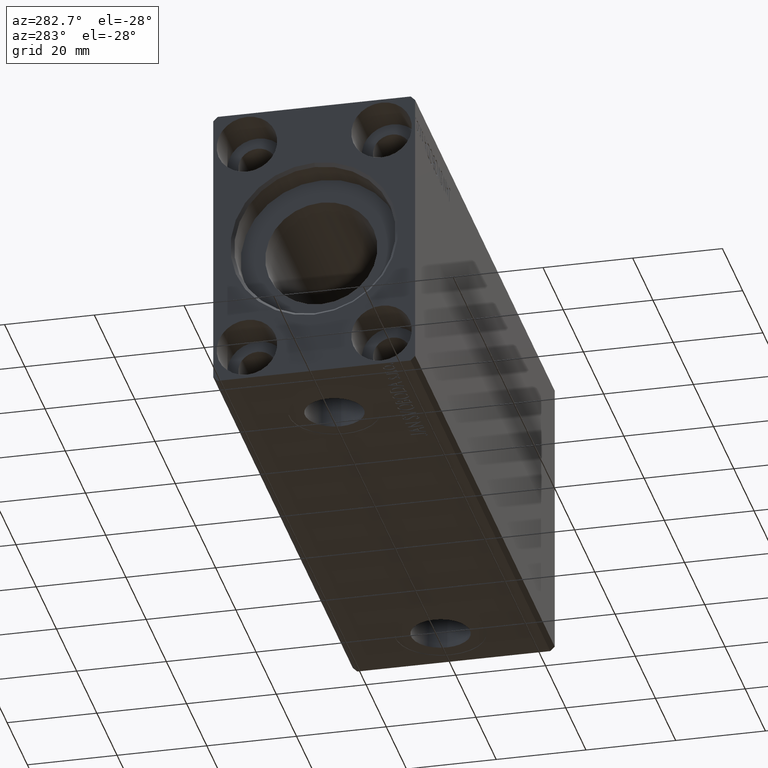
[diagram: clean part render]
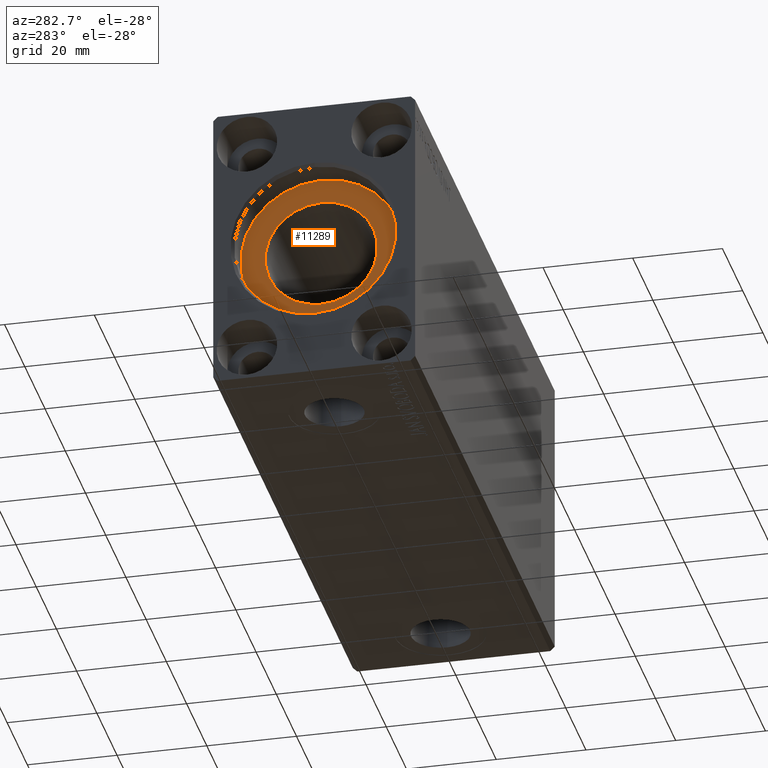
[diagram: same view with one face highlighted and labeled with its STEP entity id]
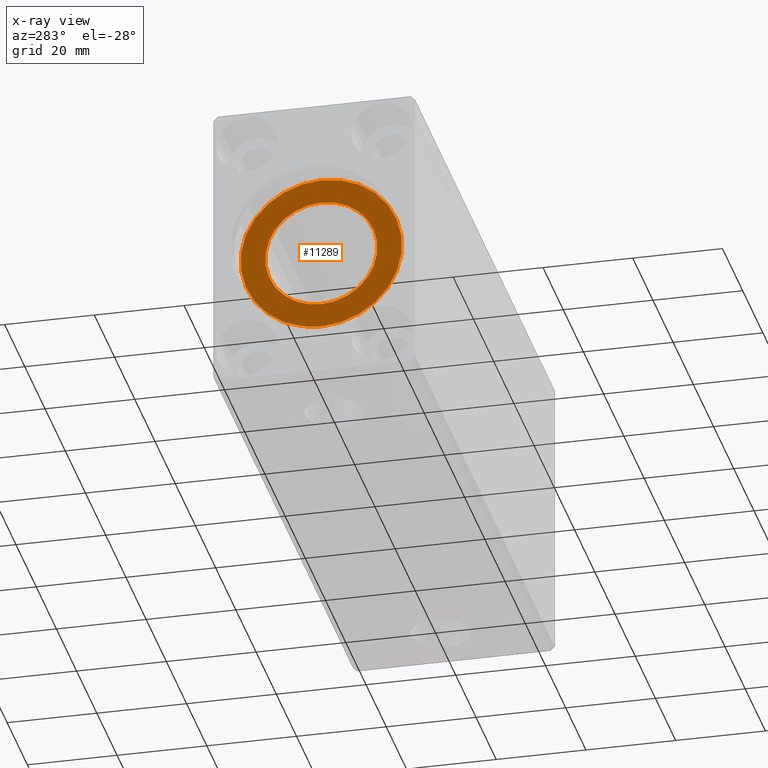
[diagram: x-ray of the same camera — body ghosted, the highlighted face saturated]
A machine part, auxiliary view. The second image highlights one B-rep face of the part: STEP entity #11289.
The next image is the same camera in x-ray: the body ghosted, the highlighted face saturated — about 0% of this face is hidden behind the body in this view.
In plain terms, the highlighted planar face has unit normal (-1, 0, 0).
Its self-contained STEP definition (entity closure, byte-faithful):
#2569 = AXIS2_PLACEMENT_3D ( 'NONE', #34093, #13853, #40357 ) ;
#2812 = DIRECTION ( 'NONE',  ( 0.000000000000000000, 0.000000000000000000, 1.000000000000000000 ) ) ;
#2897 = AXIS2_PLACEMENT_3D ( 'NONE', #19381, #36186, #42640 ) ;
#5401 = EDGE_LOOP ( 'NONE', ( #23467, #9860 ) ) ;
#6353 = EDGE_CURVE ( 'NONE', #8537, #34654, #36577, .T. ) ;
#7311 = CIRCLE ( 'NONE', #26550, 12.50000000000000000 ) ;
#8537 = VERTEX_POINT ( 'NONE', #18063 ) ;
#8780 = DIRECTION ( 'NONE',  ( 0.000000000000000000, 0.000000000000000000, 1.000000000000000000 ) ) ;
#9860 = ORIENTED_EDGE ( 'NONE', *, *, #6353, .T. ) ;
#11289 = ADVANCED_FACE ( 'NONE', ( #15232, #38498 ), #28389, .T. ) ;
#11875 = EDGE_CURVE ( 'NONE', #40590, #42161, #40403, .T. ) ;
#12135 = DIRECTION ( 'NONE',  ( 0.000000000000000000, 0.000000000000000000, 1.000000000000000000 ) ) ;
#13583 = AXIS2_PLACEMENT_3D ( 'NONE', #31400, #21700, #8780 ) ;
#13853 = DIRECTION ( 'NONE',  ( -1.000000000000000000, 0.000000000000000000, 0.000000000000000000 ) ) ;
#15232 = FACE_BOUND ( 'NONE', #17583, .T. ) ;
#16313 = ORIENTED_EDGE ( 'NONE', *, *, #42591, .F. ) ;
#17583 = EDGE_LOOP ( 'NONE', ( #38464, #16313 ) ) ;
#18063 = CARTESIAN_POINT ( 'NONE',  ( 7.000000000000000000, 2.204364238465235428E-15, -18.00000000000000000 ) ) ;
#19381 = CARTESIAN_POINT ( 'NONE',  ( 7.000000000000000000, 0.000000000000000000, 0.000000000000000000 ) ) ;
#21700 = DIRECTION ( 'NONE',  ( -1.000000000000000000, 0.000000000000000000, 0.000000000000000000 ) ) ;
#23467 = ORIENTED_EDGE ( 'NONE', *, *, #31567, .T. ) ;
#25015 = CARTESIAN_POINT ( 'NONE',  ( 7.000000000000000000, 0.000000000000000000, 18.00000000000000000 ) ) ;
#25069 = DIRECTION ( 'NONE',  ( -1.000000000000000000, 0.000000000000000000, 0.000000000000000000 ) ) ;
#26550 = AXIS2_PLACEMENT_3D ( 'NONE', #42278, #25069, #12135 ) ;
#27316 = CARTESIAN_POINT ( 'NONE',  ( 7.000000000000006217, 0.000000000000000000, 12.50000000000000000 ) ) ;
#28389 = PLANE ( 'NONE',  #13583 ) ;
#31400 = CARTESIAN_POINT ( 'NONE',  ( 7.000000000000000000, 0.000000000000000000, 0.000000000000000000 ) ) ;
#31567 = EDGE_CURVE ( 'NONE', #34654, #8537, #42112, .T. ) ;
#32110 = CARTESIAN_POINT ( 'NONE',  ( 7.000000000000000000, 0.000000000000000000, 0.000000000000000000 ) ) ;
#33323 = CARTESIAN_POINT ( 'NONE',  ( 7.000000000000006217, 1.530808498934191521E-15, -12.50000000000000000 ) ) ;
#34093 = CARTESIAN_POINT ( 'NONE',  ( 7.000000000000006217, 0.000000000000000000, 0.000000000000000000 ) ) ;
#34654 = VERTEX_POINT ( 'NONE', #25015 ) ;
#35556 = DIRECTION ( 'NONE',  ( -1.000000000000000000, 0.000000000000000000, 0.000000000000000000 ) ) ;
#36186 = DIRECTION ( 'NONE',  ( -1.000000000000000000, 0.000000000000000000, 0.000000000000000000 ) ) ;
#36577 = CIRCLE ( 'NONE', #42069, 18.00000000000000000 ) ;
#38464 = ORIENTED_EDGE ( 'NONE', *, *, #11875, .F. ) ;
#38498 = FACE_OUTER_BOUND ( 'NONE', #5401, .T. ) ;
#40357 = DIRECTION ( 'NONE',  ( 0.000000000000000000, 0.000000000000000000, 1.000000000000000000 ) ) ;
#40403 = CIRCLE ( 'NONE', #2569, 12.50000000000000000 ) ;
#40590 = VERTEX_POINT ( 'NONE', #27316 ) ;
#42069 = AXIS2_PLACEMENT_3D ( 'NONE', #32110, #35556, #2812 ) ;
#42112 = CIRCLE ( 'NONE', #2897, 18.00000000000000000 ) ;
#42161 = VERTEX_POINT ( 'NONE', #33323 ) ;
#42278 = CARTESIAN_POINT ( 'NONE',  ( 7.000000000000006217, 0.000000000000000000, 0.000000000000000000 ) ) ;
#42591 = EDGE_CURVE ( 'NONE', #42161, #40590, #7311, .T. ) ;
#42640 = DIRECTION ( 'NONE',  ( 0.000000000000000000, 0.000000000000000000, 1.000000000000000000 ) ) ;